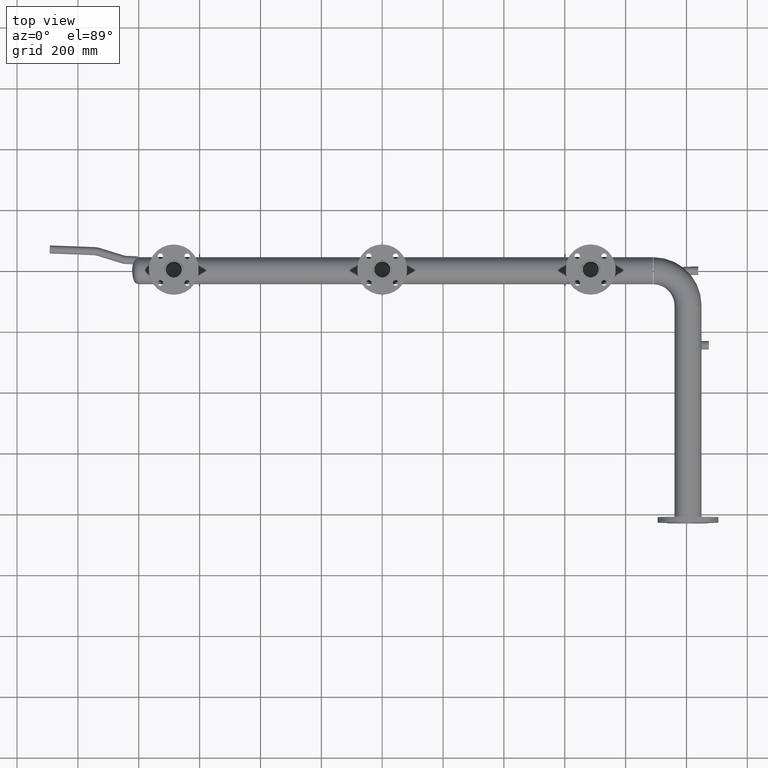
[diagram: clean part render]
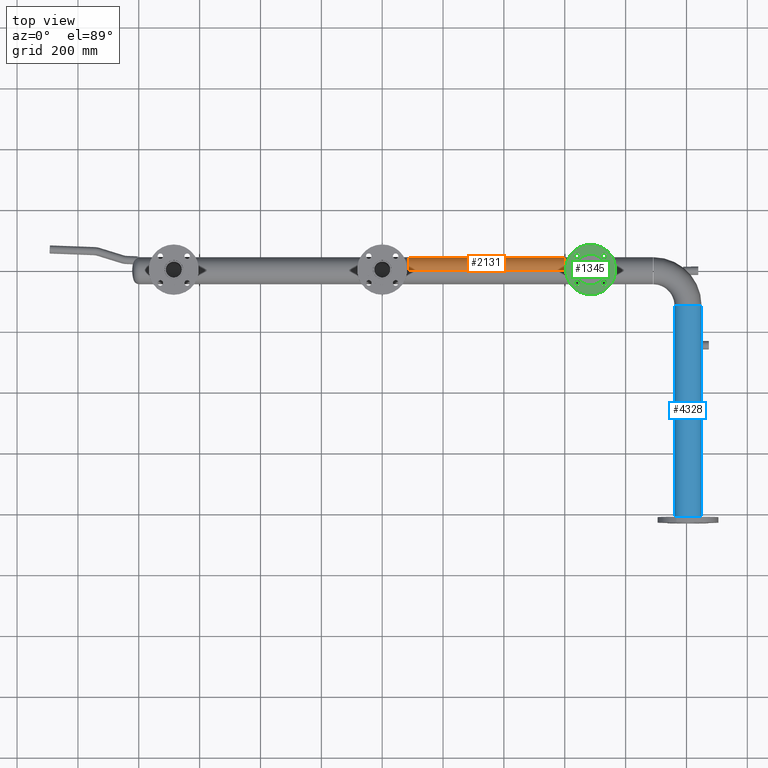
[diagram: same view with three faces highlighted in distinct colors, each labeled with its STEP entity id]
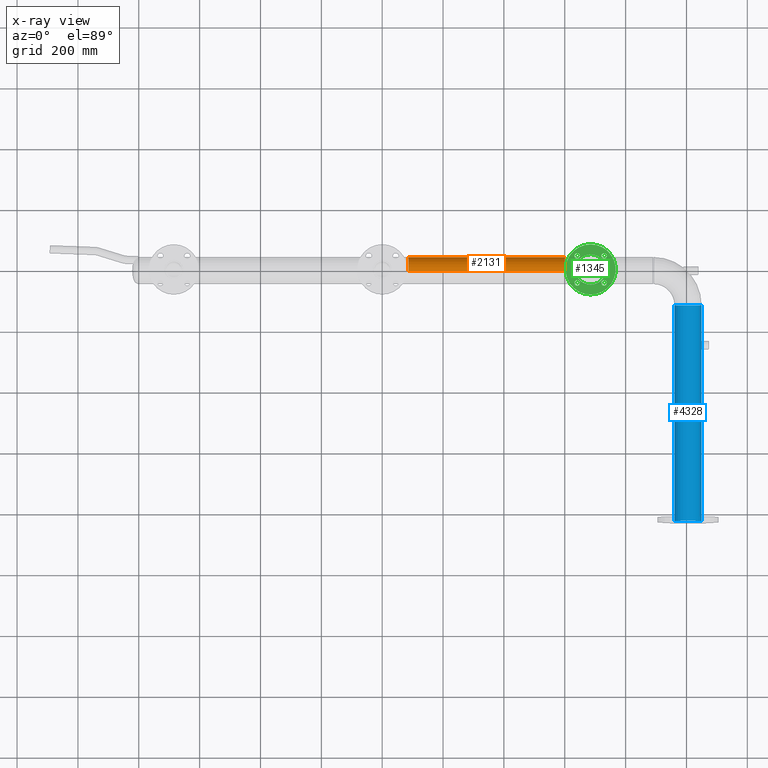
[diagram: x-ray of the same camera — body ghosted, the three highlighted faces saturated]
A machine part, top view with three faces highlighted in distinct colors.
The next image is the same camera in x-ray (body ghosted, the three faces saturated) — at least one of them is partly hidden behind the body in this view.
Their STEP definitions:

[orange] entity #2131 — the highlighted cylindrical surface (edge-blend (fillet) strip) has radius 44.45 mm, axis along (1, 0, -0).
#69 = CARTESIAN_POINT ( 'NONE',  ( 85.70000000000000284, 5.443555022209986486E-15, 44.45000000000000995 ) ) ;
#194 = AXIS2_PLACEMENT_3D ( 'NONE', #4491, #4524, #6604 ) ;
#398 = LINE ( 'NONE', #1006, #1035 ) ;
#417 = CARTESIAN_POINT ( 'NONE',  ( 85.70000000000000284, -2.517344808156641213E-83, -44.45000000000000995 ) ) ;
#1006 = CARTESIAN_POINT ( 'NONE',  ( 85.70000000000000284, 0.000000000000000000, -44.45000000000000995 ) ) ;
#1035 = VECTOR ( 'NONE', #2569, 1000.000000000000000 ) ;
#1074 = ORIENTED_EDGE ( 'NONE', *, *, #4586, .F. ) ;
#1306 = CARTESIAN_POINT ( 'NONE',  ( 85.70000000000000284, 0.000000000000000000, 4.586276769382526843E-65 ) ) ;
#1589 = VERTEX_POINT ( 'NONE', #1617 ) ;
#1617 = CARTESIAN_POINT ( 'NONE',  ( 85.70000000000000284, 5.443555022209986486E-15, 44.45000000000000995 ) ) ;
#1651 = CARTESIAN_POINT ( 'NONE',  ( 599.3000000000000682, 5.443555022209986486E-15, 44.45000000000000995 ) ) ;
#1821 = FACE_OUTER_BOUND ( 'NONE', #5069, .T. ) ;
#1855 = VERTEX_POINT ( 'NONE', #1651 ) ;
#2131 = ADVANCED_FACE ( 'NONE', ( #1821 ), #5907, .T. ) ;
#2569 = DIRECTION ( 'NONE',  ( 1.000000000000000000, 0.000000000000000000, -1.111127439881452138E-69 ) ) ;
#2793 = EDGE_CURVE ( 'NONE', #1589, #3073, #3524, .T. ) ;
#3062 = EDGE_CURVE ( 'NONE', #1855, #4638, #3104, .T. ) ;
#3073 = VERTEX_POINT ( 'NONE', #417 ) ;
#3104 = CIRCLE ( 'NONE', #194, 44.45000000000000995 ) ;
#3110 = CARTESIAN_POINT ( 'NONE',  ( 85.70000000000000284, 0.000000000000000000, 4.586276769382526843E-65 ) ) ;
#3334 = ORIENTED_EDGE ( 'NONE', *, *, #2793, .F. ) ;
#3365 = DIRECTION ( 'NONE',  ( 1.000000000000000000, 0.000000000000000000, -1.111127439881452138E-69 ) ) ;
#3396 = DIRECTION ( 'NONE',  ( 0.000000000000000000, 0.000000000000000000, -1.000000000000000000 ) ) ;
#3501 = DIRECTION ( 'NONE',  ( -1.000000000000000000, -1.361513478024022519E-17, 4.159575351272847437E-68 ) ) ;
#3524 = CIRCLE ( 'NONE', #3750, 44.45000000000000995 ) ;
#3750 = AXIS2_PLACEMENT_3D ( 'NONE', #3110, #3501, #4073 ) ;
#4073 = DIRECTION ( 'NONE',  ( 0.000000000000000000, -1.000000000000000000, -6.528202825209861639E-66 ) ) ;
#4277 = DIRECTION ( 'NONE',  ( 1.000000000000000000, 0.000000000000000000, -1.111127439881452138E-69 ) ) ;
#4298 = EDGE_CURVE ( 'NONE', #1589, #1855, #6326, .T. ) ;
#4491 = CARTESIAN_POINT ( 'NONE',  ( 599.3000000000000682, 0.000000000000000000, 4.529209264070215932E-65 ) ) ;
#4524 = DIRECTION ( 'NONE',  ( -1.000000000000000000, -1.361513478024022519E-17, 4.159575351272847437E-68 ) ) ;
#4586 = EDGE_CURVE ( 'NONE', #3073, #4638, #398, .T. ) ;
#4638 = VERTEX_POINT ( 'NONE', #6519 ) ;
#5069 = EDGE_LOOP ( 'NONE', ( #3334, #6315, #5310, #1074 ) ) ;
#5310 = ORIENTED_EDGE ( 'NONE', *, *, #3062, .T. ) ;
#5617 = VECTOR ( 'NONE', #4277, 1000.000000000000000 ) ;
#5707 = AXIS2_PLACEMENT_3D ( 'NONE', #1306, #3365, #3396 ) ;
#5907 = CYLINDRICAL_SURFACE ( 'NONE', #5707, 44.45000000000000995 ) ;
#6315 = ORIENTED_EDGE ( 'NONE', *, *, #4298, .T. ) ;
#6326 = LINE ( 'NONE', #69, #5617 ) ;
#6519 = CARTESIAN_POINT ( 'NONE',  ( 599.3000000000000682, -2.517344808156641213E-83, -44.45000000000000995 ) ) ;
#6604 = DIRECTION ( 'NONE',  ( 0.000000000000000000, -1.000000000000000000, -6.528202825209861639E-66 ) ) ;

[blue] entity #4328 — the highlighted cylindrical surface (edge-blend (fillet) strip) has radius 44.45 mm, axis along (0, -1, 0).
#103 = DIRECTION ( 'NONE',  ( 1.000000000000000000, 6.244223985518301137E-16, 0.000000000000000000 ) ) ;
#226 = DIRECTION ( 'NONE',  ( 6.268019899083453926E-16, -1.000000000000000000, -0.000000000000000000 ) ) ;
#311 = VECTOR ( 'NONE', #1056, 1000.000000000000000 ) ;
#521 = ORIENTED_EDGE ( 'NONE', *, *, #3482, .T. ) ;
#696 = CARTESIAN_POINT ( 'NONE',  ( 1049.450000000000045, -114.5000000000000142, 0.000000000000000000 ) ) ;
#699 = EDGE_CURVE ( 'NONE', #6245, #6450, #1713, .T. ) ;
#1056 = DIRECTION ( 'NONE',  ( 6.268019899083453926E-16, -1.000000000000000000, -0.000000000000000000 ) ) ;
#1115 = CARTESIAN_POINT ( 'NONE',  ( 1004.999999999999886, -114.5000000000000426, 0.000000000000000000 ) ) ;
#1396 = EDGE_LOOP ( 'NONE', ( #3988, #521, #5930, #2819 ) ) ;
#1546 = AXIS2_PLACEMENT_3D ( 'NONE', #1115, #4713, #103 ) ;
#1673 = DIRECTION ( 'NONE',  ( -6.268019899083453926E-16, 1.000000000000000000, 0.000000000000000000 ) ) ;
#1713 = CIRCLE ( 'NONE', #2038, 44.44999999999998863 ) ;
#1782 = EDGE_CURVE ( 'NONE', #4269, #6450, #4769, .T. ) ;
#1959 = AXIS2_PLACEMENT_3D ( 'NONE', #5859, #1673, #4321 ) ;
#2038 = AXIS2_PLACEMENT_3D ( 'NONE', #2598, #2093, #5338 ) ;
#2044 = LINE ( 'NONE', #4019, #311 ) ;
#2093 = DIRECTION ( 'NONE',  ( -6.268019899083453926E-16, 1.000000000000000000, 0.000000000000000000 ) ) ;
#2438 = CARTESIAN_POINT ( 'NONE',  ( 960.5500000000002956, -823.0000000000000000, 5.443555022209987275E-15 ) ) ;
#2598 = CARTESIAN_POINT ( 'NONE',  ( 1005.000000000000341, -823.0000000000000000, 0.000000000000000000 ) ) ;
#2819 = ORIENTED_EDGE ( 'NONE', *, *, #1782, .F. ) ;
#3338 = VECTOR ( 'NONE', #226, 1000.000000000000000 ) ;
#3482 = EDGE_CURVE ( 'NONE', #4182, #6245, #2044, .T. ) ;
#3676 = CYLINDRICAL_SURFACE ( 'NONE', #1546, 44.45000000000010232 ) ;
#3988 = ORIENTED_EDGE ( 'NONE', *, *, #5389, .F. ) ;
#4019 = CARTESIAN_POINT ( 'NONE',  ( 960.5499999999999545, -114.5000000000000711, 5.443555022209984909E-15 ) ) ;
#4182 = VERTEX_POINT ( 'NONE', #4649 ) ;
#4269 = VERTEX_POINT ( 'NONE', #5686 ) ;
#4321 = DIRECTION ( 'NONE',  ( -1.000000000000000000, -6.244223985518316914E-16, 0.000000000000000000 ) ) ;
#4328 = ADVANCED_FACE ( 'NONE', ( #6230 ), #3676, .T. ) ;
#4649 = CARTESIAN_POINT ( 'NONE',  ( 960.5499999999999545, -114.5000000000000711, 5.443555022210014885E-15 ) ) ;
#4713 = DIRECTION ( 'NONE',  ( 6.268019899083453926E-16, -1.000000000000000000, -0.000000000000000000 ) ) ;
#4769 = LINE ( 'NONE', #696, #3338 ) ;
#5176 = CARTESIAN_POINT ( 'NONE',  ( 1049.450000000000500, -823.0000000000000000, 0.000000000000000000 ) ) ;
#5338 = DIRECTION ( 'NONE',  ( -1.000000000000000000, 0.000000000000000000, 0.000000000000000000 ) ) ;
#5389 = EDGE_CURVE ( 'NONE', #4182, #4269, #6026, .T. ) ;
#5686 = CARTESIAN_POINT ( 'NONE',  ( 1049.450000000000045, -114.5000000000000142, 0.000000000000000000 ) ) ;
#5859 = CARTESIAN_POINT ( 'NONE',  ( 1004.999999999999886, -114.5000000000000426, 0.000000000000000000 ) ) ;
#5930 = ORIENTED_EDGE ( 'NONE', *, *, #699, .T. ) ;
#6026 = CIRCLE ( 'NONE', #1959, 44.44999999999998863 ) ;
#6230 = FACE_OUTER_BOUND ( 'NONE', #1396, .T. ) ;
#6245 = VERTEX_POINT ( 'NONE', #2438 ) ;
#6450 = VERTEX_POINT ( 'NONE', #5176 ) ;

[green] entity #1345 — the highlighted planar face has unit normal (0, 0, -1).
#16 = AXIS2_PLACEMENT_3D ( 'NONE', #5657, #4152, #3016 ) ;
#93 = CARTESIAN_POINT ( 'NONE',  ( -44.19417382415914375, 18.39999999999999858, 44.19417382415928586 ) ) ;
#125 = CIRCLE ( 'NONE', #3897, 8.999999999999987566 ) ;
#185 = DIRECTION ( 'NONE',  ( 0.000000000000000000, -1.000000000000000000, -0.000000000000000000 ) ) ;
#193 = VERTEX_POINT ( 'NONE', #3339 ) ;
#286 = EDGE_CURVE ( 'NONE', #5119, #694, #3241, .T. ) ;
#297 = FACE_BOUND ( 'NONE', #4900, .T. ) ;
#301 = ORIENTED_EDGE ( 'NONE', *, *, #4988, .T. ) ;
#342 = CIRCLE ( 'NONE', #2832, 82.50000000000000000 ) ;
#349 = CARTESIAN_POINT ( 'NONE',  ( 44.19417382415914375, 18.39999999999999858, -53.19417382415927165 ) ) ;
#434 = VERTEX_POINT ( 'NONE', #5943 ) ;
#446 = DIRECTION ( 'NONE',  ( 0.000000000000000000, 0.000000000000000000, 1.000000000000000000 ) ) ;
#471 = EDGE_LOOP ( 'NONE', ( #887, #6480 ) ) ;
#694 = VERTEX_POINT ( 'NONE', #5064 ) ;
#795 = CARTESIAN_POINT ( 'NONE',  ( 44.19417382415914375, 18.39999999999999858, -44.19417382415928586 ) ) ;
#830 = DIRECTION ( 'NONE',  ( 0.000000000000000000, -1.000000000000000000, 0.000000000000000000 ) ) ;
#843 = ORIENTED_EDGE ( 'NONE', *, *, #6495, .T. ) ;
#852 = DIRECTION ( 'NONE',  ( 0.000000000000000000, 0.000000000000000000, 1.000000000000000000 ) ) ;
#867 = DIRECTION ( 'NONE',  ( 0.000000000000000000, -1.000000000000000000, 0.000000000000000000 ) ) ;
#875 = DIRECTION ( 'NONE',  ( 0.000000000000000000, 0.000000000000000000, -1.000000000000000000 ) ) ;
#887 = ORIENTED_EDGE ( 'NONE', *, *, #3387, .F. ) ;
#898 = DIRECTION ( 'NONE',  ( 0.000000000000000000, -1.000000000000000000, 0.000000000000000000 ) ) ;
#905 = CARTESIAN_POINT ( 'NONE',  ( 44.19417382415914375, 18.39999999999999858, -44.19417382415928586 ) ) ;
#927 = AXIS2_PLACEMENT_3D ( 'NONE', #3868, #5372, #1721 ) ;
#1031 = ORIENTED_EDGE ( 'NONE', *, *, #1944, .T. ) ;
#1057 = CARTESIAN_POINT ( 'NONE',  ( 0.000000000000000000, 18.39999999999999503, 0.000000000000000000 ) ) ;
#1082 = CARTESIAN_POINT ( 'NONE',  ( -35.19417382415944928, 18.39999999999999858, -44.19417382415903006 ) ) ;
#1154 = EDGE_CURVE ( 'NONE', #193, #5712, #2717, .T. ) ;
#1189 = EDGE_LOOP ( 'NONE', ( #843, #2802 ) ) ;
#1316 = CIRCLE ( 'NONE', #3042, 8.999999999999987566 ) ;
#1345 = ADVANCED_FACE ( 'NONE', ( #5475, #4906, #2471, #297, #1862, #3495 ), #2500, .F. ) ;
#1367 = AXIS2_PLACEMENT_3D ( 'NONE', #6549, #867, #2373 ) ;
#1395 = DIRECTION ( 'NONE',  ( -0.000000000000000000, 1.000000000000000000, -0.000000000000000000 ) ) ;
#1398 = CARTESIAN_POINT ( 'NONE',  ( 0.000000000000000000, 18.39999999999999858, 0.000000000000000000 ) ) ;
#1521 = DIRECTION ( 'NONE',  ( 1.000000000000000000, 0.000000000000000000, -1.079383496163348127E-14 ) ) ;
#1565 = CARTESIAN_POINT ( 'NONE',  ( -44.19417382415914375, 18.39999999999999858, 53.19417382415927165 ) ) ;
#1695 = CARTESIAN_POINT ( 'NONE',  ( 0.000000000000000000, 18.39999999999999858, 50.00000000000000000 ) ) ;
#1721 = DIRECTION ( 'NONE',  ( 1.000000000000000000, 0.000000000000000000, -1.079383496163348127E-14 ) ) ;
#1862 = FACE_BOUND ( 'NONE', #471, .T. ) ;
#1910 = ORIENTED_EDGE ( 'NONE', *, *, #1154, .T. ) ;
#1922 = EDGE_CURVE ( 'NONE', #3421, #6547, #4377, .T. ) ;
#1944 = EDGE_CURVE ( 'NONE', #5762, #6622, #125, .T. ) ;
#2088 = EDGE_LOOP ( 'NONE', ( #1910, #301 ) ) ;
#2166 = DIRECTION ( 'NONE',  ( 0.000000000000000000, 0.000000000000000000, 1.000000000000000000 ) ) ;
#2235 = VERTEX_POINT ( 'NONE', #3260 ) ;
#2270 = CARTESIAN_POINT ( 'NONE',  ( 44.19417382415914375, 18.39999999999999858, -35.19417382415930007 ) ) ;
#2282 = AXIS2_PLACEMENT_3D ( 'NONE', #6041, #898, #2901 ) ;
#2373 = DIRECTION ( 'NONE',  ( 0.000000000000000000, -0.000000000000000000, -1.000000000000000000 ) ) ;
#2450 = EDGE_CURVE ( 'NONE', #2235, #4255, #5390, .T. ) ;
#2471 = FACE_BOUND ( 'NONE', #2088, .T. ) ;
#2500 = PLANE ( 'NONE',  #1367 ) ;
#2640 = EDGE_CURVE ( 'NONE', #6547, #3421, #4427, .T. ) ;
#2642 = EDGE_LOOP ( 'NONE', ( #1031, #6278 ) ) ;
#2669 = DIRECTION ( 'NONE',  ( 0.000000000000000000, -1.000000000000000000, 0.000000000000000000 ) ) ;
#2717 = CIRCLE ( 'NONE', #5815, 8.999999999999987566 ) ;
#2802 = ORIENTED_EDGE ( 'NONE', *, *, #286, .T. ) ;
#2832 = AXIS2_PLACEMENT_3D ( 'NONE', #3288, #1395, #852 ) ;
#2901 = DIRECTION ( 'NONE',  ( 0.000000000000000000, 0.000000000000000000, 1.000000000000000000 ) ) ;
#2926 = DIRECTION ( 'NONE',  ( 0.000000000000000000, -1.000000000000000000, -0.000000000000000000 ) ) ;
#2968 = CARTESIAN_POINT ( 'NONE',  ( 1.010333609296566392E-14, 18.39999999999999503, -82.50000000000000000 ) ) ;
#3016 = DIRECTION ( 'NONE',  ( 0.000000000000000000, 0.000000000000000000, 1.000000000000000000 ) ) ;
#3042 = AXIS2_PLACEMENT_3D ( 'NONE', #4789, #185, #5729 ) ;
#3241 = CIRCLE ( 'NONE', #2282, 8.999999999999987566 ) ;
#3260 = CARTESIAN_POINT ( 'NONE',  ( 6.123233995736766085E-15, 18.39999999999999858, -50.00000000000000000 ) ) ;
#3288 = CARTESIAN_POINT ( 'NONE',  ( 0.000000000000000000, 18.39999999999999503, 0.000000000000000000 ) ) ;
#3306 = CIRCLE ( 'NONE', #927, 8.999999999999987566 ) ;
#3339 = CARTESIAN_POINT ( 'NONE',  ( 35.19417382415976192, 18.39999999999999858, 44.19417382415878137 ) ) ;
#3387 = EDGE_CURVE ( 'NONE', #4255, #2235, #5255, .T. ) ;
#3389 = DIRECTION ( 'NONE',  ( -0.000000000000000000, 1.000000000000000000, -0.000000000000000000 ) ) ;
#3421 = VERTEX_POINT ( 'NONE', #349 ) ;
#3495 = FACE_OUTER_BOUND ( 'NONE', #4798, .T. ) ;
#3868 = CARTESIAN_POINT ( 'NONE',  ( 44.19417382415974771, 18.39999999999999858, 44.19417382415868190 ) ) ;
#3897 = AXIS2_PLACEMENT_3D ( 'NONE', #4432, #2926, #4397 ) ;
#3990 = CIRCLE ( 'NONE', #6135, 8.999999999999987566 ) ;
#4152 = DIRECTION ( 'NONE',  ( -0.000000000000000000, 1.000000000000000000, -0.000000000000000000 ) ) ;
#4255 = VERTEX_POINT ( 'NONE', #1695 ) ;
#4296 = ORIENTED_EDGE ( 'NONE', *, *, #5508, .T. ) ;
#4377 = CIRCLE ( 'NONE', #6297, 8.999999999999987566 ) ;
#4397 = DIRECTION ( 'NONE',  ( -1.000000000000000000, 0.000000000000000000, 3.854941057726243422E-15 ) ) ;
#4427 = CIRCLE ( 'NONE', #6031, 8.999999999999987566 ) ;
#4432 = CARTESIAN_POINT ( 'NONE',  ( -44.19417382415943507, 18.39999999999999858, -44.19417382415899453 ) ) ;
#4571 = VERTEX_POINT ( 'NONE', #2968 ) ;
#4594 = AXIS2_PLACEMENT_3D ( 'NONE', #1398, #3389, #6533 ) ;
#4703 = ORIENTED_EDGE ( 'NONE', *, *, #5159, .T. ) ;
#4789 = CARTESIAN_POINT ( 'NONE',  ( -44.19417382415943507, 18.39999999999999858, -44.19417382415899453 ) ) ;
#4798 = EDGE_LOOP ( 'NONE', ( #4703, #4296 ) ) ;
#4851 = CIRCLE ( 'NONE', #4959, 82.50000000000000000 ) ;
#4900 = EDGE_LOOP ( 'NONE', ( #5866, #5464 ) ) ;
#4906 = FACE_BOUND ( 'NONE', #1189, .T. ) ;
#4927 = DIRECTION ( 'NONE',  ( 0.000000000000000000, 0.000000000000000000, -1.000000000000000000 ) ) ;
#4959 = AXIS2_PLACEMENT_3D ( 'NONE', #1057, #6600, #446 ) ;
#4988 = EDGE_CURVE ( 'NONE', #5712, #193, #3306, .T. ) ;
#5064 = CARTESIAN_POINT ( 'NONE',  ( -44.19417382415914375, 18.39999999999999858, 35.19417382415930007 ) ) ;
#5119 = VERTEX_POINT ( 'NONE', #1565 ) ;
#5159 = EDGE_CURVE ( 'NONE', #434, #4571, #4851, .T. ) ;
#5255 = CIRCLE ( 'NONE', #4594, 50.00000000000000000 ) ;
#5372 = DIRECTION ( 'NONE',  ( 0.000000000000000000, -1.000000000000000000, 0.000000000000000000 ) ) ;
#5390 = CIRCLE ( 'NONE', #16, 50.00000000000000000 ) ;
#5464 = ORIENTED_EDGE ( 'NONE', *, *, #1922, .T. ) ;
#5475 = FACE_BOUND ( 'NONE', #2642, .T. ) ;
#5485 = EDGE_CURVE ( 'NONE', #6622, #5762, #1316, .T. ) ;
#5508 = EDGE_CURVE ( 'NONE', #4571, #434, #342, .T. ) ;
#5657 = CARTESIAN_POINT ( 'NONE',  ( 0.000000000000000000, 18.39999999999999858, 0.000000000000000000 ) ) ;
#5712 = VERTEX_POINT ( 'NONE', #6020 ) ;
#5729 = DIRECTION ( 'NONE',  ( -1.000000000000000000, 0.000000000000000000, 3.854941057726243422E-15 ) ) ;
#5762 = VERTEX_POINT ( 'NONE', #1082 ) ;
#5815 = AXIS2_PLACEMENT_3D ( 'NONE', #6261, #6624, #1521 ) ;
#5866 = ORIENTED_EDGE ( 'NONE', *, *, #2640, .T. ) ;
#5943 = CARTESIAN_POINT ( 'NONE',  ( 0.000000000000000000, 18.39999999999999503, 82.50000000000000000 ) ) ;
#6020 = CARTESIAN_POINT ( 'NONE',  ( 53.19417382415974060, 18.39999999999999858, 44.19417382415858953 ) ) ;
#6031 = AXIS2_PLACEMENT_3D ( 'NONE', #905, #6492, #875 ) ;
#6041 = CARTESIAN_POINT ( 'NONE',  ( -44.19417382415914375, 18.39999999999999858, 44.19417382415928586 ) ) ;
#6135 = AXIS2_PLACEMENT_3D ( 'NONE', #93, #2669, #2166 ) ;
#6261 = CARTESIAN_POINT ( 'NONE',  ( 44.19417382415974771, 18.39999999999999858, 44.19417382415868190 ) ) ;
#6278 = ORIENTED_EDGE ( 'NONE', *, *, #5485, .T. ) ;
#6297 = AXIS2_PLACEMENT_3D ( 'NONE', #795, #830, #4927 ) ;
#6449 = CARTESIAN_POINT ( 'NONE',  ( -53.19417382415942797, 18.39999999999999858, -44.19417382415896611 ) ) ;
#6480 = ORIENTED_EDGE ( 'NONE', *, *, #2450, .F. ) ;
#6492 = DIRECTION ( 'NONE',  ( 0.000000000000000000, -1.000000000000000000, 0.000000000000000000 ) ) ;
#6495 = EDGE_CURVE ( 'NONE', #694, #5119, #3990, .T. ) ;
#6533 = DIRECTION ( 'NONE',  ( 0.000000000000000000, 0.000000000000000000, 1.000000000000000000 ) ) ;
#6547 = VERTEX_POINT ( 'NONE', #2270 ) ;
#6549 = CARTESIAN_POINT ( 'NONE',  ( -50.00000000000000000, 18.39999999999999858, 0.000000000000000000 ) ) ;
#6600 = DIRECTION ( 'NONE',  ( -0.000000000000000000, 1.000000000000000000, -0.000000000000000000 ) ) ;
#6622 = VERTEX_POINT ( 'NONE', #6449 ) ;
#6624 = DIRECTION ( 'NONE',  ( 0.000000000000000000, -1.000000000000000000, 0.000000000000000000 ) ) ;